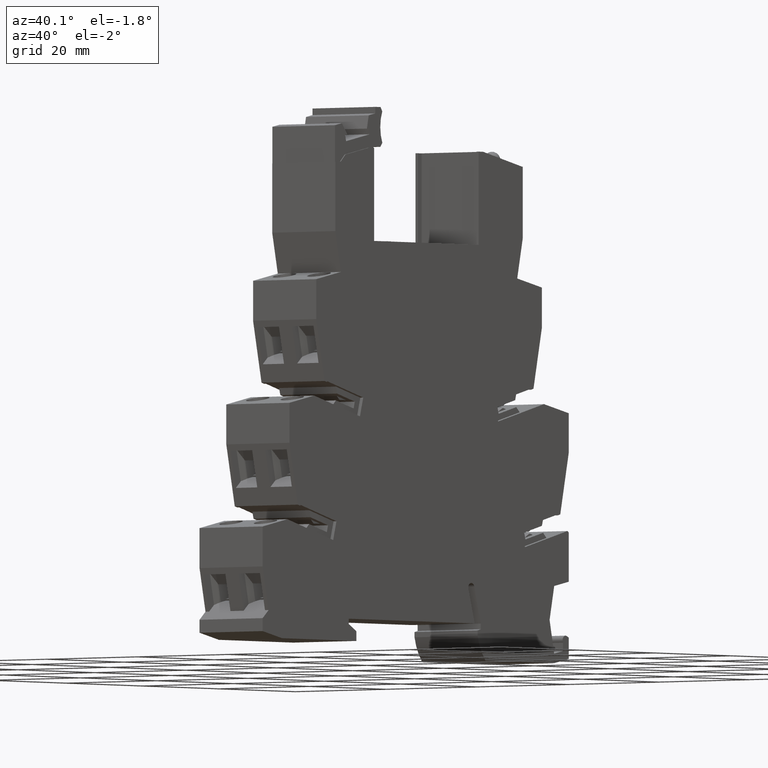
[diagram: clean part render]
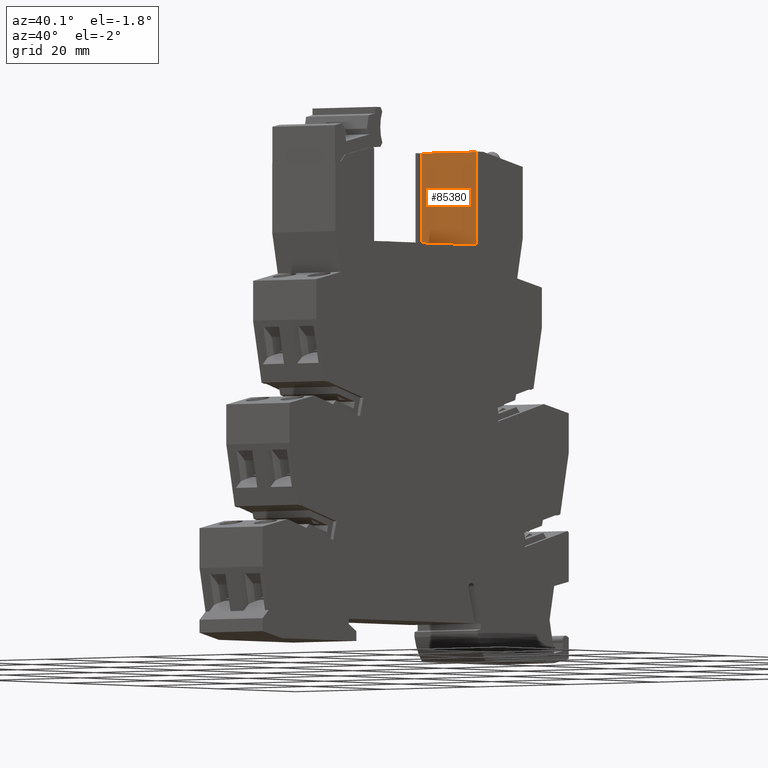
[diagram: same view with one face highlighted and labeled with its STEP entity id]
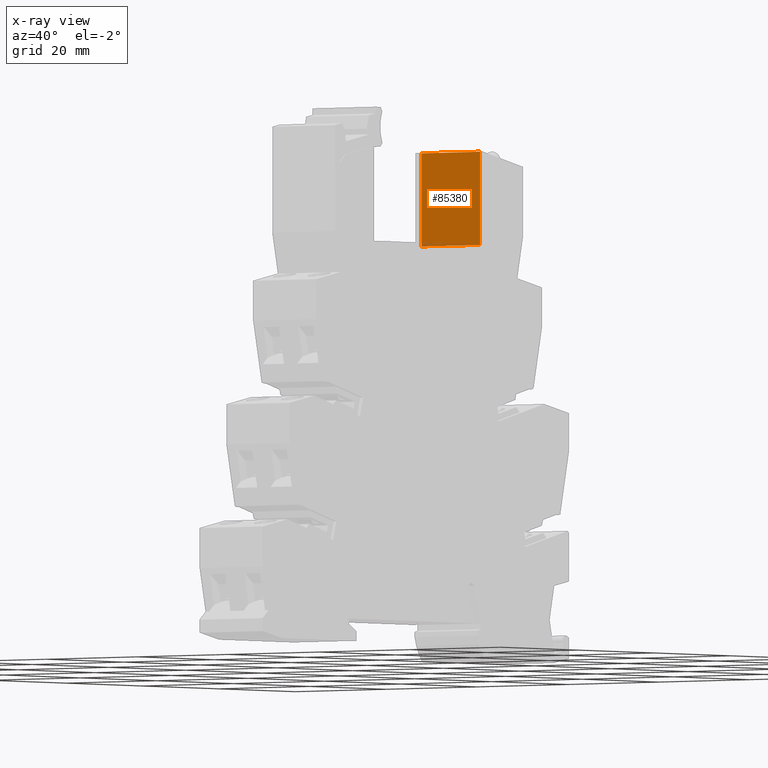
[diagram: x-ray of the same camera — body ghosted, the highlighted face saturated]
A machine part, auxiliary view. The second image highlights one B-rep face of the part: STEP entity #85380.
The next image is the same camera in x-ray: the body ghosted, the highlighted face saturated — about 1% of this face is hidden behind the body in this view.
In plain terms, the highlighted planar face has unit normal (-0, 1, -0).
Its self-contained STEP definition (entity closure, byte-faithful):
#72450=CARTESIAN_POINT('',(-16.1428399943554,60.9999999789282,
-1.30000000000485));
#72460=VERTEX_POINT('',#72450);
#72490=CARTESIAN_POINT('',(-16.1428399943554,60.9999999789282,
-3.95000000000485));
#72500=DIRECTION('',(6.3025836956883E-15,-6.97040999116145E-30,1.));
#72510=VECTOR('',#72500,1.);
#72520=LINE('',#72490,#72510);
#72530=CARTESIAN_POINT('',(-16.1428399943555,60.9999999789282,
-14.2000000000069));
#72540=VERTEX_POINT('',#72530);
#72550=EDGE_CURVE('',#72540,#72460,#72520,.T.);
#85080=CARTESIAN_POINT('',(-16.1428399943554,60.9999999789282,
-1.30000000000485));
#85090=DIRECTION('',(-1.,-6.05765437811046E-15,6.3025836956883E-15));
#85100=DIRECTION('',(-6.3025836956883E-15,6.97040999116145E-30,-1.));
#85110=AXIS2_PLACEMENT_3D('',#85080,#85090,#85100);
#85120=PLANE('',#85110);
#85130=CARTESIAN_POINT('',(-16.1428399943551,7.105427357601E-15,
-14.2000000000069));
#85140=DIRECTION('',(-6.05765437811046E-15,1.,4.53595020502082E-29));
#85150=VECTOR('',#85140,1.);
#85160=LINE('',#85130,#85150);
#85170=CARTESIAN_POINT('',(-16.1428399943556,76.7000000000352,
-14.2000000000069));
#85180=VERTEX_POINT('',#85170);
#85190=EDGE_CURVE('',#72540,#85180,#85160,.T.);
#85200=ORIENTED_EDGE('',*,*,#85190,.T.);
#85210=ORIENTED_EDGE('',*,*,#72550,.F.);
#85220=CARTESIAN_POINT('',(-16.142839994355,7.105427357601E-15,
-1.30000000000485));
#85230=DIRECTION('',(-6.05765437811046E-15,1.,4.53595020502082E-29));
#85240=VECTOR('',#85230,1.);
#85250=LINE('',#85220,#85240);
#85260=CARTESIAN_POINT('',(-16.1428399943555,76.7000000000352,
-1.30000000000485));
#85270=VERTEX_POINT('',#85260);
#85280=EDGE_CURVE('',#72460,#85270,#85250,.T.);
#85290=ORIENTED_EDGE('',*,*,#85280,.F.);
#85300=CARTESIAN_POINT('',(-16.1428399943555,76.7000000000352,
0.100000000000052));
#85310=DIRECTION('',(-6.3025836956883E-15,3.78653234506086E-29,-1.));
#85320=VECTOR('',#85310,1.);
#85330=LINE('',#85300,#85320);
#85340=EDGE_CURVE('',#85270,#85180,#85330,.T.);
#85350=ORIENTED_EDGE('',*,*,#85340,.F.);
#85360=EDGE_LOOP('',(#85350,#85290,#85210,#85200));
#85370=FACE_OUTER_BOUND('',#85360,.T.);
#85380=ADVANCED_FACE('',(#85370),#85120,.F.);